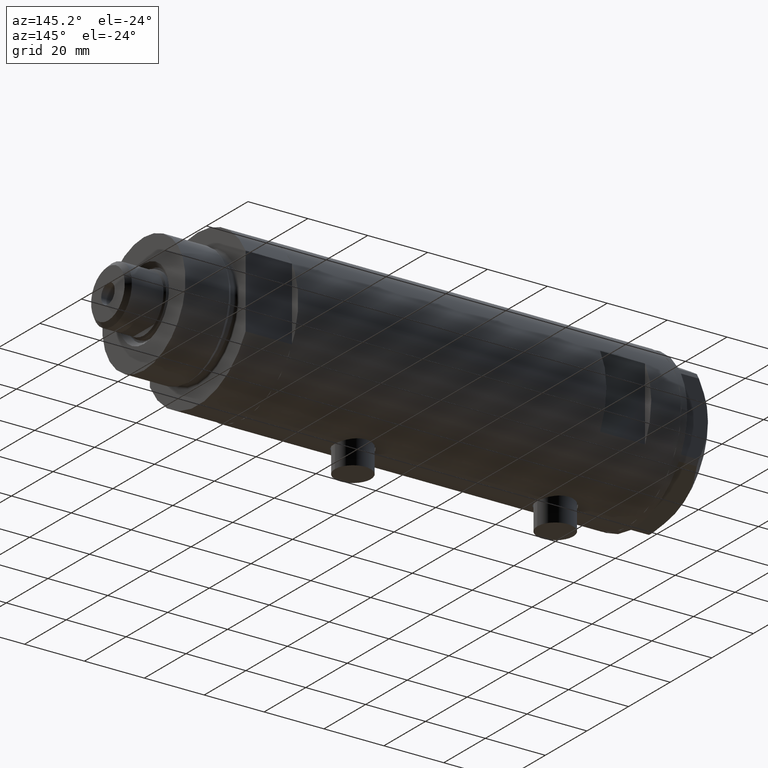
[diagram: clean part render]
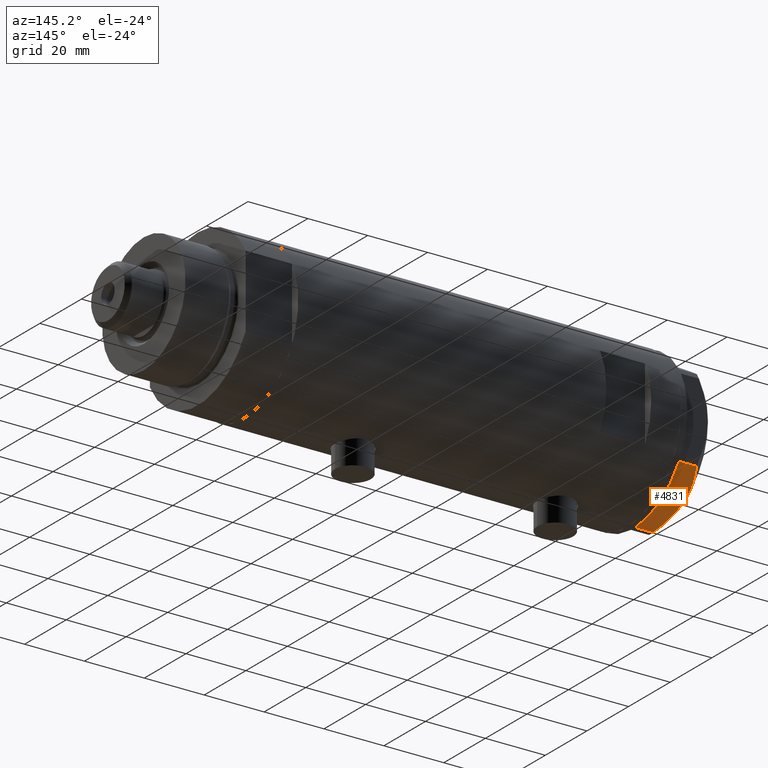
[diagram: same view with one face highlighted and labeled with its STEP entity id]
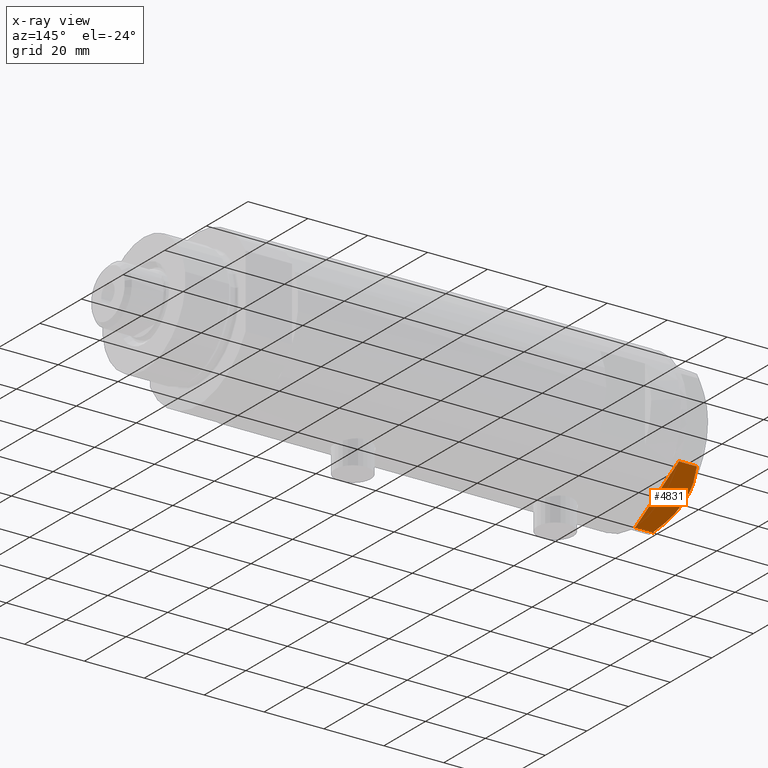
[diagram: x-ray of the same camera — body ghosted, the highlighted face saturated]
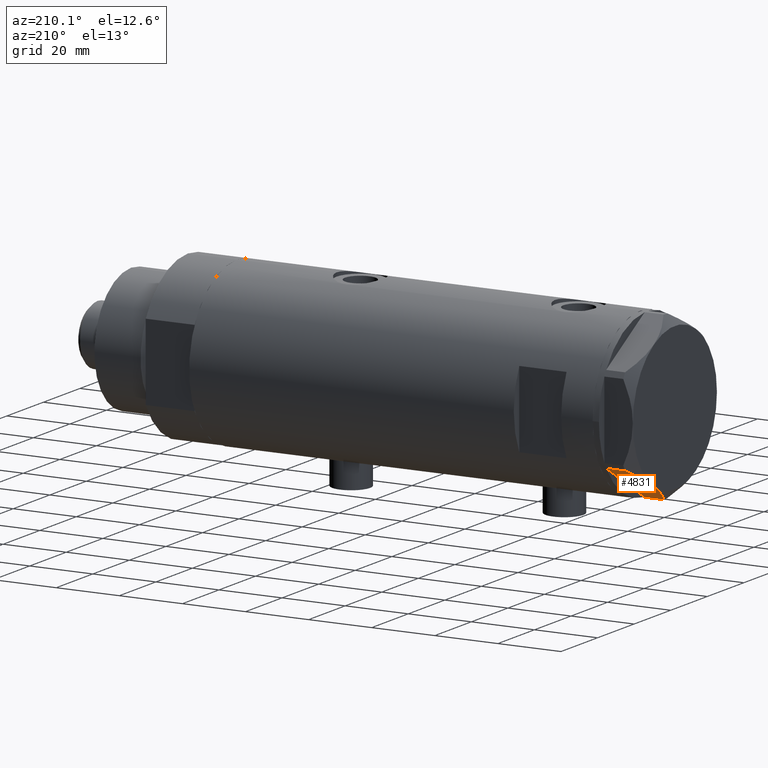
[diagram: same view with one face highlighted and labeled with its STEP entity id]
A machine part, auxiliary view. The second image highlights one B-rep face of the part: STEP entity #4831.
The next image is the same camera in x-ray: the body ghosted, the highlighted face saturated — about 0% of this face is hidden behind the body in this view.
A second angle (auxiliary view) of the same face is appended — the face is thin or edge-on in the first view.
In plain terms, the highlighted planar face has unit normal (0, -0.5, 0.866).
Its self-contained STEP definition (entity closure, byte-faithful):
#17 = B_SPLINE_CURVE_WITH_KNOTS ( 'NONE', 3,
 ( #3935, #2788, #3508, #2058, #150, #3128, #4650, #1276, #918, #4630 ),
 .UNSPECIFIED., .F., .F.,
 ( 4, 2, 2, 2, 4 ),
 ( 0.01376519981810293489, 0.01998941321701561136, 0.02154546656674377961, 0.02310151991647194786, 0.02621362661592828783 ),
 .UNSPECIFIED. ) ;
#141 = VECTOR ( 'NONE', #4381, 999.9999999999998863 ) ;
#150 = CARTESIAN_POINT ( 'NONE',  ( 5.229981517798067081, 23.53858114556529912, 7.892128867758392730 ) ) ;
#318 = CARTESIAN_POINT ( 'NONE',  ( 11.49999999999990408, 19.91858428704219364, 9.000000000000000000 ) ) ;
#643 = ORIENTED_EDGE ( 'NONE', *, *, #4481, .T. ) ;
#672 = VERTEX_POINT ( 'NONE', #1107 ) ;
#830 = EDGE_CURVE ( 'NONE', #2456, #3711, #2627, .T. ) ;
#866 = PLANE ( 'NONE',  #4449 ) ;
#918 = CARTESIAN_POINT ( 'NONE',  ( 1.799196345396824492, 25.51934588838292228, 6.431317509509382191 ) ) ;
#938 = ORIENTED_EDGE ( 'NONE', *, *, #2531, .F. ) ;
#956 = FACE_OUTER_BOUND ( 'NONE', #2007, .T. ) ;
#960 = CARTESIAN_POINT ( 'NONE',  ( 11.49999999999990408, 19.91858428704219364, 9.000000000000000000 ) ) ;
#1045 = CARTESIAN_POINT ( 'NONE',  ( 22.03005154776138852, 13.83905619136154819, 5.983800287807532037 ) ) ;
#1107 = CARTESIAN_POINT ( 'NONE',  ( 22.03005154776124286, 13.83905619136163168, 0.000000000000000000 ) ) ;
#1251 = DIRECTION ( 'NONE',  ( -0.8660254037844415942, 0.4999999999999949485, 0.000000000000000000 ) ) ;
#1276 = CARTESIAN_POINT ( 'NONE',  ( 2.640413878806739945, 25.03366871902167290, 6.844201024438365089 ) ) ;
#1337 = DIRECTION ( 'NONE',  ( 0.000000000000000000, 0.000000000000000000, 1.000000000000000000 ) ) ;
#1355 = VECTOR ( 'NONE', #2253, 999.9999999999998863 ) ;
#1419 = CARTESIAN_POINT ( 'NONE',  ( 18.67981377008996446, 15.77331687414937278, 7.629374868826049649 ) ) ;
#1666 = LINE ( 'NONE', #2827, #4530 ) ;
#1680 = CARTESIAN_POINT ( 'NONE',  ( 22.99999999999981171, 13.27905619136164184, 9.000000000000000000 ) ) ;
#1745 = CARTESIAN_POINT ( 'NONE',  ( 0.9999999999999297229, 25.98076211353316722, 0.000000000000000000 ) ) ;
#1757 = VERTEX_POINT ( 'NONE', #960 ) ;
#2007 = EDGE_LOOP ( 'NONE', ( #938, #3098, #2257, #3564, #2074, #643, #4426 ) ) ;
#2058 = CARTESIAN_POINT ( 'NONE',  ( 5.671686373602799591, 23.28356272816407824, 8.040681765829278405 ) ) ;
#2074 = ORIENTED_EDGE ( 'NONE', *, *, #830, .T. ) ;
#2078 = CARTESIAN_POINT ( 'NONE',  ( 22.03005154776124286, 13.83905619136163168, 9.000000000000000000 ) ) ;
#2253 = DIRECTION ( 'NONE',  ( -0.8660254037844415942, 0.4999999999999949485, 0.000000000000000000 ) ) ;
#2257 = ORIENTED_EDGE ( 'NONE', *, *, #3813, .T. ) ;
#2378 = CARTESIAN_POINT ( 'NONE',  ( 0.9699484522385816154, 25.99811238272274494, 0.000000000000000000 ) ) ;
#2384 = DIRECTION ( 'NONE',  ( 0.8660254037844415942, -0.4999999999999949485, 0.000000000000000000 ) ) ;
#2456 = VERTEX_POINT ( 'NONE', #1745 ) ;
#2531 = EDGE_CURVE ( 'NONE', #3705, #1757, #3672, .T. ) ;
#2537 = CARTESIAN_POINT ( 'NONE',  ( 15.16323225988329959, 17.80361615569442790, 8.637313967156861949 ) ) ;
#2565 = CARTESIAN_POINT ( 'NONE',  ( 21.99999999999987210, 13.85640646055121827, 0.000000000000000000 ) ) ;
#2582 = CARTESIAN_POINT ( 'NONE',  ( 13.34348161667005073, 18.85424967941157703, 8.907842277728345692 ) ) ;
#2627 = LINE ( 'NONE', #2679, #1355 ) ;
#2679 = CARTESIAN_POINT ( 'NONE',  ( 22.99999999999981171, 13.27905619136164184, 0.000000000000000000 ) ) ;
#2788 = CARTESIAN_POINT ( 'NONE',  ( 9.678244919010086988, 20.97037507344920826, 9.000000000000001776 ) ) ;
#2827 = CARTESIAN_POINT ( 'NONE',  ( 0.9699484522385816154, 25.99811238272274494, 9.000000000000000000 ) ) ;
#2848 = LINE ( 'NONE', #4346, #4146 ) ;
#2947 = EDGE_CURVE ( 'NONE', #1757, #3257, #17, .T. ) ;
#3098 = ORIENTED_EDGE ( 'NONE', *, *, #4218, .T. ) ;
#3128 = CARTESIAN_POINT ( 'NONE',  ( 4.357207709416038632, 24.04247733877631532, 7.570552255229681116 ) ) ;
#3248 = CARTESIAN_POINT ( 'NONE',  ( 13.80210138309697498, 18.58946543380931260, 8.852712638955710034 ) ) ;
#3257 = VERTEX_POINT ( 'NONE', #3822 ) ;
#3349 = DIRECTION ( 'NONE',  ( 0.000000000000000000, 0.000000000000000000, -1.000000000000000000 ) ) ;
#3508 = CARTESIAN_POINT ( 'NONE',  ( 7.884645426989626671, 22.00591022298560517, 8.707651728476925257 ) ) ;
#3564 = ORIENTED_EDGE ( 'NONE', *, *, #4505, .T. ) ;
#3627 = VERTEX_POINT ( 'NONE', #2565 ) ;
#3672 = B_SPLINE_CURVE_WITH_KNOTS ( 'NONE', 3,
 ( #1045, #3702, #1419, #3726, #2537, #3248, #2582, #4041, #4022, #318 ),
 .UNSPECIFIED., .F., .F.,
 ( 4, 2, 2, 2, 4 ),
 ( 0.001228959670438493522, 0.007497079744270714746, 0.01063113978118682655, 0.01219816979964488159, 0.01376519981810293489 ),
 .UNSPECIFIED. ) ;
#3702 = CARTESIAN_POINT ( 'NONE',  ( 20.37350567916420019, 14.79546339452108050, 6.877782426143415506 ) ) ;
#3705 = VERTEX_POINT ( 'NONE', #3872 ) ;
#3711 = VERTEX_POINT ( 'NONE', #2378 ) ;
#3726 = CARTESIAN_POINT ( 'NONE',  ( 16.05322244309623869, 17.28978008384030929, 8.426899937603700153 ) ) ;
#3813 = EDGE_CURVE ( 'NONE', #672, #3627, #4356, .T. ) ;
#3822 = CARTESIAN_POINT ( 'NONE',  ( 0.9699484522385767304, 25.99811238272274849, 5.983800287807627960 ) ) ;
#3872 = CARTESIAN_POINT ( 'NONE',  ( 22.03005154776138852, 13.83905619136154819, 5.983800287807532037 ) ) ;
#3935 = CARTESIAN_POINT ( 'NONE',  ( 11.49999999999990408, 19.91858428704219364, 9.000000000000000000 ) ) ;
#3947 = DIRECTION ( 'NONE',  ( -0.4999999999999949485, -0.8660254037844415942, 0.000000000000000000 ) ) ;
#3952 = LINE ( 'NONE', #2078, #4221 ) ;
#4007 = CARTESIAN_POINT ( 'NONE',  ( 22.99999999999981171, 13.27905619136164184, 0.000000000000000000 ) ) ;
#4022 = CARTESIAN_POINT ( 'NONE',  ( 11.95865151389051917, 19.65378171203322566, 9.000000000000005329 ) ) ;
#4041 = CARTESIAN_POINT ( 'NONE',  ( 12.41906678023027588, 19.38796083407295967, 8.981686407609410949 ) ) ;
#4146 = VECTOR ( 'NONE', #1251, 999.9999999999998863 ) ;
#4218 = EDGE_CURVE ( 'NONE', #3705, #672, #3952, .T. ) ;
#4221 = VECTOR ( 'NONE', #3349, 1000.000000000000000 ) ;
#4346 = CARTESIAN_POINT ( 'NONE',  ( 22.99999999999981171, 13.27905619136164184, 0.000000000000000000 ) ) ;
#4356 = LINE ( 'NONE', #4007, #141 ) ;
#4381 = DIRECTION ( 'NONE',  ( -0.8660254037844415942, 0.4999999999999949485, 0.000000000000000000 ) ) ;
#4426 = ORIENTED_EDGE ( 'NONE', *, *, #2947, .F. ) ;
#4449 = AXIS2_PLACEMENT_3D ( 'NONE', #1680, #3947, #2384 ) ;
#4481 = EDGE_CURVE ( 'NONE', #3711, #3257, #1666, .T. ) ;
#4505 = EDGE_CURVE ( 'NONE', #3627, #2456, #2848, .T. ) ;
#4530 = VECTOR ( 'NONE', #1337, 1000.000000000000000 ) ;
#4630 = CARTESIAN_POINT ( 'NONE',  ( 0.9699484522385767304, 25.99811238272274849, 5.983800287807627960 ) ) ;
#4650 = CARTESIAN_POINT ( 'NONE',  ( 3.925137811030050994, 24.29193301091819635, 7.397272853991373687 ) ) ;
#4831 = ADVANCED_FACE ( 'NONE', ( #956 ), #866, .F. ) ;